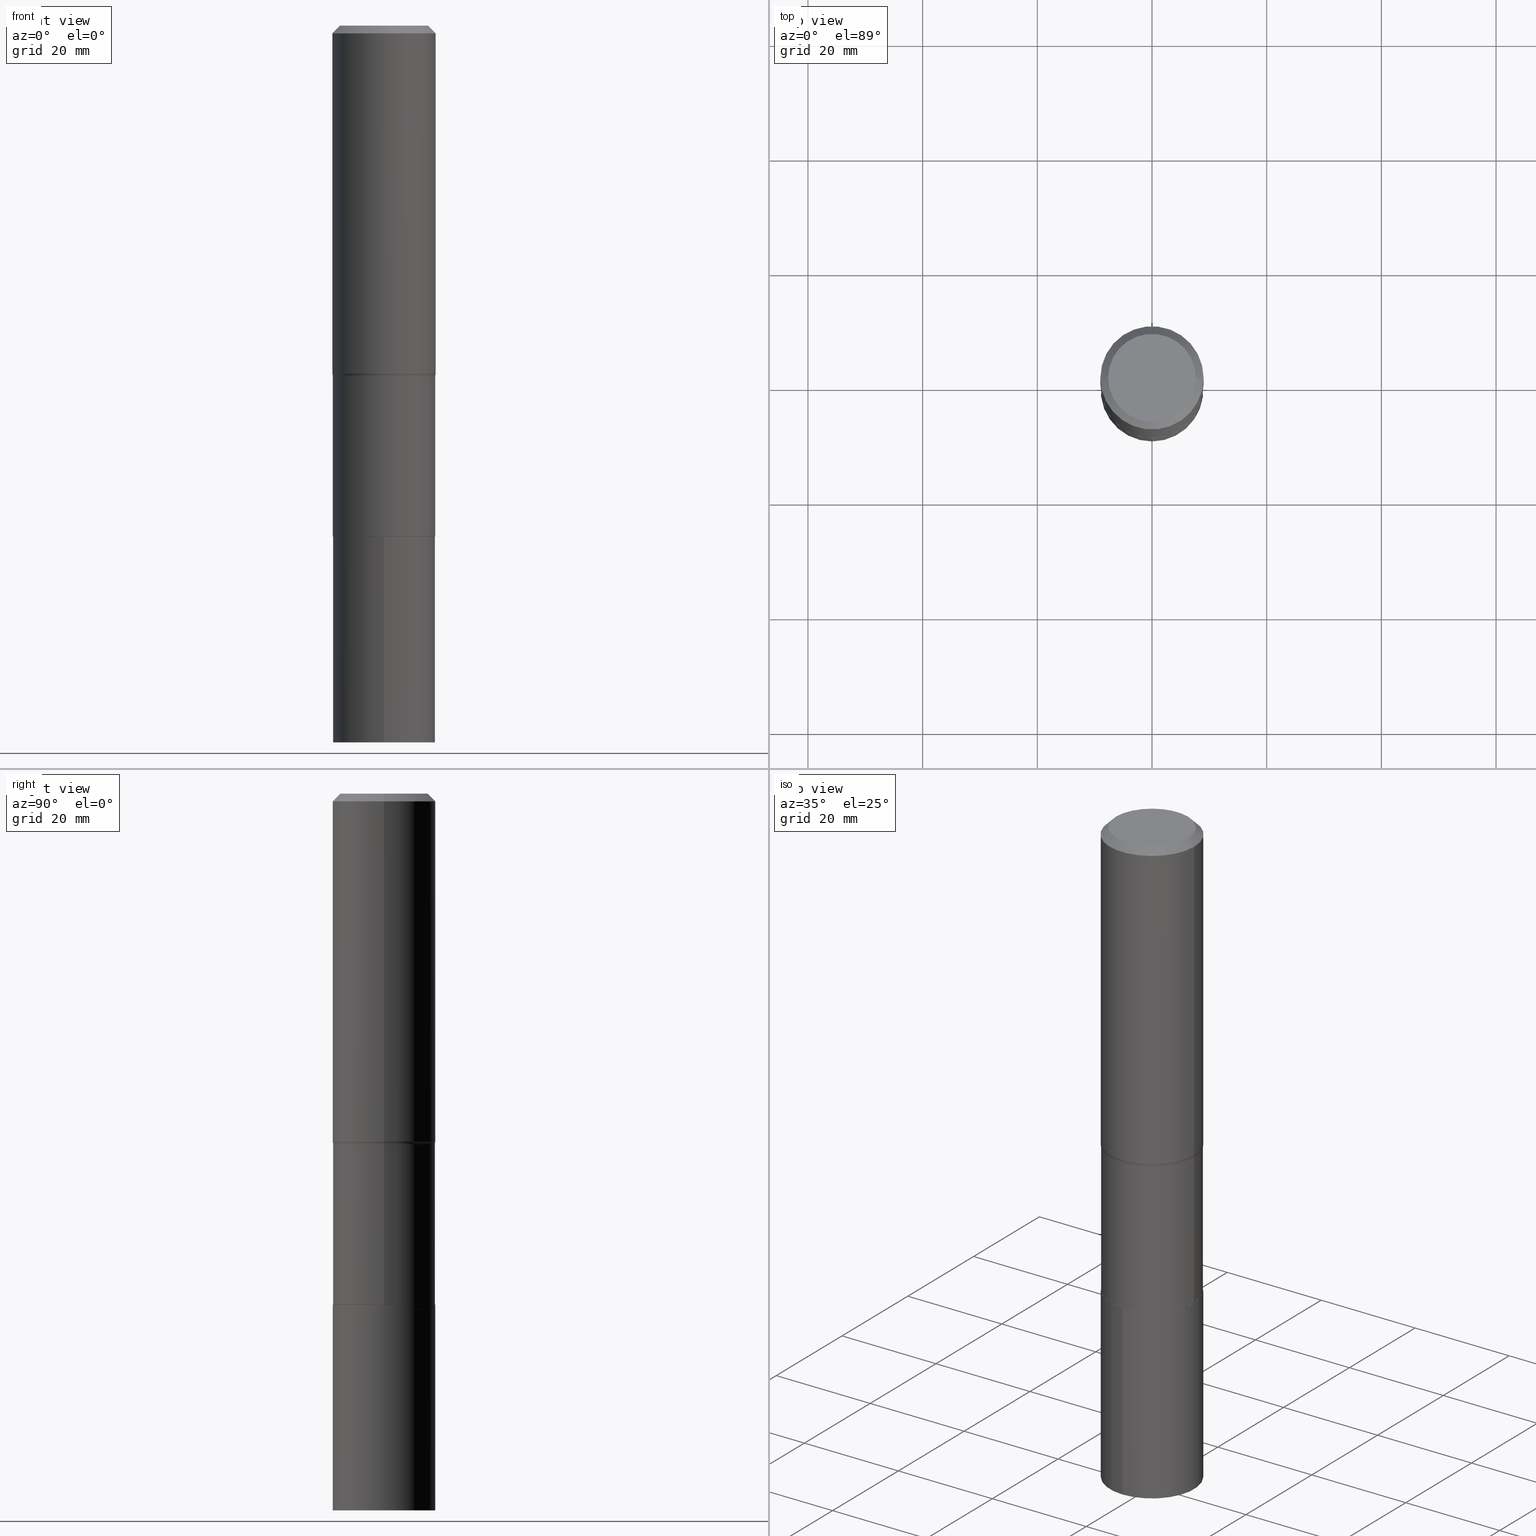
[diagram: canonical four-view strip — front | top / right | iso, engineering-drawing reading convention]
A machine part, canonical four-view strip (front | top / right | iso — engineering-drawing reading convention). The complete STEP part file that produces these views, byte-faithful:
ISO-10303-21;
HEADER;
FILE_DESCRIPTION (( 'STEP AP203' ),
    '1' );
FILE_NAME ('58546.STEP',
    '2024-04-19T14:42:25',
    ( '' ),
    ( '' ),
    'SwSTEP 2.0',
    'SolidWorks 2023',
    '' );
FILE_SCHEMA (( 'CONFIG_CONTROL_DESIGN' ));
ENDSEC;

DATA;
#1 = PERSON_AND_ORGANIZATION ( #364, #388 ) ;
#2 = ORIENTED_EDGE ( 'NONE', *, *, #446, .T. ) ;
#3 = FACE_OUTER_BOUND ( 'NONE', #212, .T. ) ;
#4 = DIMENSIONAL_EXPONENTS ( 1.000000000000000000, 0.000000000000000000, 0.000000000000000000, 0.000000000000000000, 0.000000000000000000, 0.000000000000000000, 0.000000000000000000 ) ;
#5 = EDGE_CURVE ( 'NONE', #31, #149, #405, .T. ) ;
#6 = AXIS2_PLACEMENT_3D ( 'NONE', #278, #455, #57 ) ;
#7 = CIRCLE ( 'NONE', #398, 0.07999999999999996003 ) ;
#8 =( LENGTH_UNIT ( ) NAMED_UNIT ( * ) SI_UNIT ( $, .METRE. ) );
#9 = PERSON_AND_ORGANIZATION ( #364, #388 ) ;
#10 = DIRECTION ( 'NONE',  ( -2.445468806185136877E-29, 3.491481338843145188E-15, 1.000000000000000000 ) ) ;
#11 = VECTOR ( 'NONE', #33, 39.37007874015748143 ) ;
#12 = CYLINDRICAL_SURFACE ( 'NONE', #435, 0.3515499999999999736 ) ;
#13 = CARTESIAN_POINT ( 'NONE',  ( 0.3515499999999998071, -1.086863225968481738E-14, -2.409800000000000164 ) ) ;
#14 = EDGE_CURVE ( 'NONE', #230, #419, #198, .T. ) ;
#15 = CARTESIAN_POINT ( 'NONE',  ( 0.000000000000000000, 0.000000000000000000, 0.000000000000000000 ) ) ;
#16 = AXIS2_PLACEMENT_3D ( 'NONE', #181, #429, #69 ) ;
#17 = AXIS2_PLACEMENT_3D ( 'NONE', #261, #208, #28 ) ;
#18 = AXIS2_PLACEMENT_3D ( 'NONE', #396, #317, #467 ) ;
#19 = DIRECTION ( 'NONE',  ( -6.982962677686265133E-15, -1.000000000000000000, 3.108346458443195584E-15 ) ) ;
#20 = CARTESIAN_POINT ( 'NONE',  ( -1.002970424325033577E-46, 1.431975951230896212E-32, 4.101342130344485961E-18 ) ) ;
#21 = CARTESIAN_POINT ( 'NONE',  ( 0.3543500000000002759, -1.081493330997731886E-14, -2.388820009532888644 ) ) ;
#22 = ADVANCED_FACE ( 'NONE', ( #433 ), #85, .F. ) ;
#23 = ORIENTED_EDGE ( 'NONE', *, *, #397, .T. ) ;
#24 = CARTESIAN_POINT ( 'NONE',  ( 0.3510500000000000287, -1.469704154772632696E-14, -3.507299999999999862 ) ) ;
#25 = VERTEX_POINT ( 'NONE', #369 ) ;
#26 = DIRECTION ( 'NONE',  ( -1.000000000000000000, 6.982962677686266711E-15, 0.000000000000000000 ) ) ;
#27 = ORIENTED_EDGE ( 'NONE', *, *, #146, .T. ) ;
#28 = DIRECTION ( 'NONE',  ( 1.000000000000000000, -6.982962677686265922E-15, 4.876176775795935793E-29 ) ) ;
#29 = EDGE_CURVE ( 'NONE', #25, #149, #35, .T. ) ;
#30 = ORIENTED_EDGE ( 'NONE', *, *, #29, .F. ) ;
#31 = VERTEX_POINT ( 'NONE', #439 ) ;
#32 = AXIS2_PLACEMENT_3D ( 'NONE', #145, #360, #263 ) ;
#33 = DIRECTION ( 'NONE',  ( 0.7071067811864026886, -2.468850131080739687E-15, 0.7071067811866923458 ) ) ;
#34 = ORIENTED_EDGE ( 'NONE', *, *, #134, .T. ) ;
#35 = LINE ( 'NONE', #294, #41 ) ;
#36 = CARTESIAN_POINT ( 'NONE',  ( -0.4315499999999998226, -5.347424554171501591E-15, -2.409800000000000164 ) ) ;
#37 = EDGE_LOOP ( 'NONE', ( #428, #349, #34, #209 ) ) ;
#38 = DIRECTION ( 'NONE',  ( -2.445468806185136597E-29, 3.491481338843145583E-15, 1.000000000000000000 ) ) ;
#39 = DIRECTION ( 'NONE',  ( -6.982962677686265133E-15, -1.000000000000000000, 3.108346458443195584E-15 ) ) ;
#40 =( NAMED_UNIT ( * ) SI_UNIT ( $, .STERADIAN. ) SOLID_ANGLE_UNIT ( ) );
#41 = VECTOR ( 'NONE', #290, 39.37007874015748143 ) ;
#42 = SECURITY_CLASSIFICATION ( '', '', #154 ) ;
#43 = DIRECTION ( 'NONE',  ( 0.000000000000000000, 0.000000000000000000, 1.000000000000000000 ) ) ;
#44 = PERSON_AND_ORGANIZATION_ROLE ( 'creator' ) ;
#45 = ADVANCED_FACE ( 'NONE', ( #46 ), #117, .T. ) ;
#46 = FACE_OUTER_BOUND ( 'NONE', #71, .T. ) ;
#47 = FACE_OUTER_BOUND ( 'NONE', #256, .T. ) ;
#48 = APPROVAL ( #243, 'UNSPECIFIED' ) ;
#49 = CIRCLE ( 'NONE', #264, 0.3543500000000002759 ) ;
#50 = DIRECTION ( 'NONE',  ( -2.445468806185136597E-29, 3.491481338843145583E-15, 1.000000000000000000 ) ) ;
#51 = ADVANCED_BREP_SHAPE_REPRESENTATION ( '58546', ( #224, #214, #80 ), #457 ) ;
#52 = EDGE_CURVE ( 'NONE', #250, #419, #72, .T. ) ;
#53 = DIRECTION ( 'NONE',  ( 1.000000000000000000, -6.982962677686266711E-15, 4.876239486148337140E-29 ) ) ;
#54 = CARTESIAN_POINT ( 'NONE',  ( 0.3543500000000001648, -2.474412824838129483E-15, 1.727873240503290590E-29 ) ) ;
#55 = CONICAL_SURFACE ( 'NONE', #95, 0.3510500000000000287, 0.7853981633972434429 ) ;
#56 = CARTESIAN_POINT ( 'NONE',  ( 8.576992743933130300E-29, -1.224567249972456408E-14, -3.507299999999999862 ) ) ;
#57 = DIRECTION ( 'NONE',  ( 1.000000000000000000, -6.982962677686265922E-15, 0.000000000000000000 ) ) ;
#58 = ADVANCED_FACE ( 'NONE', ( #357 ), #330, .F. ) ;
#59 = EDGE_LOOP ( 'NONE', ( #2, #254, #220, #343 ) ) ;
#60 = CARTESIAN_POINT ( 'NONE',  ( 1.299827807207562971E-30, -1.855809618628614763E-16, -0.05315250000000033143 ) ) ;
#61 = CIRCLE ( 'NONE', #125, 0.3515499999999999736 ) ;
#62 = APPLICATION_CONTEXT ( 'configuration controlled 3d designs of mechanical parts and assemblies' ) ;
#63 = AXIS2_PLACEMENT_3D ( 'NONE', #128, #202, #340 ) ;
#64 = DIRECTION ( 'NONE',  ( -2.445468806185136597E-29, 3.491481338843145583E-15, 1.000000000000000000 ) ) ;
#65 = ORIENTED_EDGE ( 'NONE', *, *, #96, .T. ) ;
#66 = ADVANCED_FACE ( 'NONE', ( #47 ), #461, .T. ) ;
#67 = PLANE ( 'NONE',  #17 ) ;
#68 = ORIENTED_EDGE ( 'NONE', *, *, #441, .F. ) ;
#69 = DIRECTION ( 'NONE',  ( -6.982962677686265133E-15, -1.000000000000000000, 3.108346458443195584E-15 ) ) ;
#70 = DIRECTION ( 'NONE',  ( -2.445468806185136597E-29, 3.491481338843145583E-15, 1.000000000000000000 ) ) ;
#71 = EDGE_LOOP ( 'NONE', ( #141, #316, #180, #211 ) ) ;
#72 = LINE ( 'NONE', #216, #155 ) ;
#73 = DIRECTION ( 'NONE',  ( 2.445468806185136597E-29, -3.491481338843145583E-15, -1.000000000000000000 ) ) ;
#74 = CONICAL_SURFACE ( 'NONE', #452, 0.3543499999999999983, 0.7853981633974452814 ) ;
#75 = CARTESIAN_POINT ( 'NONE',  ( 5.893090729144942257E-29, -8.413771730344211499E-15, -2.409800000000000164 ) ) ;
#76 = CALENDAR_DATE ( 2024, 19, 4 ) ;
#77 = DATE_AND_TIME ( #76, #437 ) ;
#78 = PERSON_AND_ORGANIZATION ( #364, #388 ) ;
#79 = CIRCLE ( 'NONE', #217, 0.3515499999999998071 ) ;
#80 = AXIS2_PLACEMENT_3D ( 'NONE', #434, #43, #227 ) ;
#81 = ADVANCED_FACE ( 'NONE', ( #301 ), #88, .F. ) ;
#82 = APPLICATION_PROTOCOL_DEFINITION ( 'international standard', 'config_control_design', 1994, #90 ) ;
#83 = CARTESIAN_POINT ( 'NONE',  ( 1.299827807207562971E-30, -1.855809618628614763E-16, -0.05315250000000033143 ) ) ;
#84 = PERSON_AND_ORGANIZATION_ROLE ( 'creator' ) ;
#85 = PLANE ( 'NONE',  #370 ) ;
#86 = PERSON_AND_ORGANIZATION ( #364, #388 ) ;
#87 = DIRECTION ( 'NONE',  ( -2.445468806185136597E-29, 3.491481338843145583E-15, 1.000000000000000000 ) ) ;
#88 = TOROIDAL_SURFACE ( 'NONE', #32, 0.4315499999999998226, 0.08000000000000000167 ) ;
#89 = CIRCLE ( 'NONE', #18, 0.3515499999999999736 ) ;
#90 = APPLICATION_CONTEXT ( 'configuration controlled 3d designs of mechanical parts and assemblies' ) ;
#91 = FACE_OUTER_BOUND ( 'NONE', #168, .T. ) ;
#92 = DIRECTION ( 'NONE',  ( -2.445924807738232456E-29, 3.490828318665115878E-15, 1.000000000000000000 ) ) ;
#93 = CARTESIAN_POINT ( 'NONE',  ( 8.575770009530037498E-29, -1.224392675905514179E-14, -3.506799999999999695 ) ) ;
#94 = VECTOR ( 'NONE', #456, 39.37007874015748143 ) ;
#95 = AXIS2_PLACEMENT_3D ( 'NONE', #386, #70, #431 ) ;
#96 = EDGE_CURVE ( 'NONE', #419, #230, #79, .T. ) ;
#97 = CARTESIAN_POINT ( 'NONE',  ( 0.3515499999999999736, -1.469878728839574925E-14, -3.506799999999999695 ) ) ;
#98 = ORIENTED_EDGE ( 'NONE', *, *, #52, .T. ) ;
#99 = DIRECTION ( 'NONE',  ( 1.000000000000000000, -6.982962677686265922E-15, 4.876176775795935793E-29 ) ) ;
#100 = CARTESIAN_POINT ( 'NONE',  ( 1.299827807207562971E-30, -1.855809618628614763E-16, -0.05315250000000033143 ) ) ;
#101 = ADVANCED_FACE ( 'NONE', ( #3 ), #12, .T. ) ;
#102 = EDGE_LOOP ( 'NONE', ( #215, #271, #65, #383 ) ) ;
#103 = CIRCLE ( 'NONE', #425, 0.3543499999999999983 ) ;
#104 = FACE_OUTER_BOUND ( 'NONE', #172, .T. ) ;
#105 = DIRECTION ( 'NONE',  ( -2.445468806185136597E-29, 3.491481338843145583E-15, 1.000000000000000000 ) ) ;
#106 = ORIENTED_EDGE ( 'NONE', *, *, #152, .T. ) ;
#107 = ORIENTED_EDGE ( 'NONE', *, *, #52, .F. ) ;
#108 = CYLINDRICAL_SURFACE ( 'NONE', #337, 0.3515499999999999181 ) ;
#109 = EDGE_LOOP ( 'NONE', ( #465, #447, #191, #391 ) ) ;
#110 = CARTESIAN_POINT ( 'NONE',  ( 1.352974009284250732E-29, -3.247973253878527260E-14, -4.921300000000000452 ) ) ;
#111 = APPROVAL_ROLE ( '' ) ;
#112 = CC_DESIGN_DATE_AND_TIME_ASSIGNMENT ( #327, #324, ( #115 ) ) ;
#113 = APPROVAL_PERSON_ORGANIZATION ( #9, #280, #368 ) ;
#114 = DATE_AND_TIME ( #189, #286 ) ;
#115 = PRODUCT_DEFINITION ( 'UNKNOWN', '', #371, #436 ) ;
#116 = LENGTH_MEASURE_WITH_UNIT ( LENGTH_MEASURE( 0.02539999999999999897 ), #8 );
#117 = CONICAL_SURFACE ( 'NONE', #376, 0.3543499999999999983, 0.7853981633974452814 ) ;
#118 = DIRECTION ( 'NONE',  ( 2.445468806185136597E-29, -3.491481338843145583E-15, -1.000000000000000000 ) ) ;
#119 = CIRCLE ( 'NONE', #443, 0.3543499999999999983 ) ;
#120 = VERTEX_POINT ( 'NONE', #412 ) ;
#121 = PERSON_AND_ORGANIZATION_ROLE ( 'design_owner' ) ;
#122 = ORIENTED_EDGE ( 'NONE', *, *, #196, .T. ) ;
#123 = ORIENTED_EDGE ( 'NONE', *, *, #363, .F. ) ;
#124 = CARTESIAN_POINT ( 'NONE',  ( 1.203553042207499101E-28, -1.718170374231704070E-14, -4.921300000000000452 ) ) ;
#125 = AXIS2_PLACEMENT_3D ( 'NONE', #93, #273, #129 ) ;
#126 = VECTOR ( 'NONE', #421, 39.37007874015748143 ) ;
#127 = CARTESIAN_POINT ( 'NONE',  ( 0.3515499999999999181, -2.454860529340606276E-15, 1.714219945531060835E-29 ) ) ;
#128 = CARTESIAN_POINT ( 'NONE',  ( 8.575770009530037498E-29, -1.224392675905514179E-14, -3.506799999999999695 ) ) ;
#129 = DIRECTION ( 'NONE',  ( 1.000000000000000000, -6.982962677686265922E-15, 0.000000000000000000 ) ) ;
#130 = AXIS2_PLACEMENT_3D ( 'NONE', #124, #92, #336 ) ;
#131 = VECTOR ( 'NONE', #140, 39.37007874015748143 ) ;
#132 = CARTESIAN_POINT ( 'NONE',  ( 8.576992743933130300E-29, -1.224567249972456408E-14, -3.507299999999999862 ) ) ;
#133 = CYLINDRICAL_SURFACE ( 'NONE', #296, 0.3515499999999999736 ) ;
#134 = EDGE_CURVE ( 'NONE', #120, #466, #161, .T. ) ;
#135 = ORIENTED_EDGE ( 'NONE', *, *, #363, .T. ) ;
#136 = DIRECTION ( 'NONE',  ( 1.000000000000000000, -6.982962677686265922E-15, 4.876176775795935793E-29 ) ) ;
#137 = VERTEX_POINT ( 'NONE', #97 ) ;
#138 = AXIS2_PLACEMENT_3D ( 'NONE', #75, #333, #367 ) ;
#139 = LOCAL_TIME ( 10, 42, 25.00000000000000000, #222 ) ;
#140 = DIRECTION ( 'NONE',  ( 0.7071067811865453523, -7.319954787623248157E-15, -0.7071067811865496822 ) ) ;
#141 = ORIENTED_EDGE ( 'NONE', *, *, #176, .F. ) ;
#142 = ORIENTED_EDGE ( 'NONE', *, *, #159, .F. ) ;
#143 = CARTESIAN_POINT ( 'NONE',  ( 5.841784816903559502E-29, -8.340520485139185830E-15, -2.388820009532888644 ) ) ;
#144 = VERTEX_POINT ( 'NONE', #414 ) ;
#145 = CARTESIAN_POINT ( 'NONE',  ( 5.893090729144942257E-29, -8.413771730344211499E-15, -2.409800000000000164 ) ) ;
#146 = EDGE_CURVE ( 'NONE', #287, #250, #375, .T. ) ;
#147 = PERSON_AND_ORGANIZATION ( #364, #388 ) ;
#148 = VERTEX_POINT ( 'NONE', #21 ) ;
#149 = VERTEX_POINT ( 'NONE', #373 ) ;
#150 = CARTESIAN_POINT ( 'NONE',  ( 8.576992743933130300E-29, -1.224567249972456408E-14, -3.507299999999999862 ) ) ;
#151 = AXIS2_PLACEMENT_3D ( 'NONE', #210, #462, #219 ) ;
#152 = EDGE_CURVE ( 'NONE', #399, #287, #354, .T. ) ;
#153 = PERSON_AND_ORGANIZATION_ROLE ( 'design_supplier' ) ;
#154 = SECURITY_CLASSIFICATION_LEVEL ( 'unclassified' ) ;
#155 = VECTOR ( 'NONE', #10, 39.37007874015748143 ) ;
#156 = DIRECTION ( 'NONE',  ( -1.000000000000000000, 6.982962677686266711E-15, 0.000000000000000000 ) ) ;
#157 = CIRCLE ( 'NONE', #300, 0.3515499999999999736 ) ;
#158 = CARTESIAN_POINT ( 'NONE',  ( 8.576992743933130300E-29, -1.224567249972456408E-14, -3.507299999999999862 ) ) ;
#159 = EDGE_CURVE ( 'NONE', #25, #392, #206, .T. ) ;
#160 = DATE_TIME_ROLE ( 'classification_date' ) ;
#161 = LINE ( 'NONE', #237, #345 ) ;
#162 = CARTESIAN_POINT ( 'NONE',  ( -0.3515499999999999736, -7.830936257135043446E-15, -3.506799999999999695 ) ) ;
#163 = DIRECTION ( 'NONE',  ( 2.445924807738231896E-29, -3.490828318665115878E-15, -1.000000000000000000 ) ) ;
#164 = DIRECTION ( 'NONE',  ( -2.445468806185136597E-29, 3.491481338843145583E-15, 1.000000000000000000 ) ) ;
#165 = CARTESIAN_POINT ( 'NONE',  ( -1.002970424325033577E-46, 1.431975951230896212E-32, 4.101342130344485961E-18 ) ) ;
#166 = CC_DESIGN_APPROVAL ( #409, ( #371 ) ) ;
#167 = LINE ( 'NONE', #351, #131 ) ;
#168 = EDGE_LOOP ( 'NONE', ( #122, #98, #321, #170 ) ) ;
#169 = CARTESIAN_POINT ( 'NONE',  ( 0.000000000000000000, 0.000000000000000000, 0.000000000000000000 ) ) ;
#170 = ORIENTED_EDGE ( 'NONE', *, *, #266, .F. ) ;
#171 = CARTESIAN_POINT ( 'NONE',  ( 2.497912987564734962E-15, 0.3515499999999827652, -4.921300000000002228 ) ) ;
#172 = EDGE_LOOP ( 'NONE', ( #400, #262, #188, #352 ) ) ;
#173 = DIRECTION ( 'NONE',  ( -6.982962677686265922E-15, -1.000000000000000000, 3.490828318665115878E-15 ) ) ;
#174 = VECTOR ( 'NONE', #381, 39.37007874015748143 ) ;
#175 = CARTESIAN_POINT ( 'NONE',  ( -0.3515499999999998071, -7.830936257135045023E-15, -2.409800000000000164 ) ) ;
#176 = EDGE_CURVE ( 'NONE', #144, #120, #310, .T. ) ;
#177 = ORIENTED_EDGE ( 'NONE', *, *, #464, .F. ) ;
#178 = CARTESIAN_POINT ( 'NONE',  ( 8.576992743933130300E-29, -1.224567249972456408E-14, -3.507299999999999862 ) ) ;
#179 = CYLINDRICAL_SURFACE ( 'NONE', #228, 0.3543500000000001648 ) ;
#180 = ORIENTED_EDGE ( 'NONE', *, *, #377, .T. ) ;
#181 = CARTESIAN_POINT ( 'NONE',  ( 8.576992743933130300E-29, -1.224567249972456408E-14, -3.507299999999999862 ) ) ;
#182 = UNCERTAINTY_MEASURE_WITH_UNIT (LENGTH_MEASURE( 1.000000000000000082E-05 ), #440, 'distance_accuracy_value', 'NONE');
#183 = EDGE_CURVE ( 'NONE', #325, #148, #236, .T. ) ;
#184 = AXIS2_PLACEMENT_3D ( 'NONE', #304, #87, #276 ) ;
#185 = COORDINATED_UNIVERSAL_TIME_OFFSET ( 5, 0, .BEHIND. ) ;
#186 = APPROVAL_PERSON_ORGANIZATION ( #404, #409, #111 ) ;
#187 = CARTESIAN_POINT ( 'NONE',  ( -0.3543499999999999983, -1.745242539335107473E-15, -0.05315250000000033143 ) ) ;
#188 = ORIENTED_EDGE ( 'NONE', *, *, #430, .T. ) ;
#189 = CALENDAR_DATE ( 2024, 19, 4 ) ;
#190 = AXIS2_PLACEMENT_3D ( 'NONE', #165, #410, #53 ) ;
#191 = ORIENTED_EDGE ( 'NONE', *, *, #232, .T. ) ;
#192 = CC_DESIGN_SECURITY_CLASSIFICATION ( #42, ( #371 ) ) ;
#193 = CC_DESIGN_PERSON_AND_ORGANIZATION_ASSIGNMENT ( #1, #84, ( #115 ) ) ;
#194 = DIRECTION ( 'NONE',  ( 1.000000000000000000, -6.982962677686265922E-15, 4.876176775795935793E-29 ) ) ;
#195 = DIRECTION ( 'NONE',  ( 1.000000000000000000, -6.982962677686266711E-15, 0.000000000000000000 ) ) ;
#196 = EDGE_CURVE ( 'NONE', #137, #250, #61, .T. ) ;
#197 = DIRECTION ( 'NONE',  ( -2.445468806185136877E-29, 3.491481338843145188E-15, 1.000000000000000000 ) ) ;
#198 = CIRCLE ( 'NONE', #138, 0.3515499999999998071 ) ;
#199 = APPROVAL_PERSON_ORGANIZATION ( #86, #48, #201 ) ;
#200 = PRODUCT_DEFINITION_SHAPE ( 'NONE', 'NONE',  #115 ) ;
#201 = APPROVAL_ROLE ( '' ) ;
#202 = DIRECTION ( 'NONE',  ( -2.445468806185136597E-29, 3.491481338843145583E-15, 1.000000000000000000 ) ) ;
#203 = PLANE ( 'NONE',  #463 ) ;
#204 = EDGE_LOOP ( 'NONE', ( #107, #251, #408, #292 ) ) ;
#205 = DIRECTION ( 'NONE',  ( 7.105427357601001859E-15, 1.000000000000000000, -3.491481338843145583E-15 ) ) ;
#206 = CIRCLE ( 'NONE', #130, 0.3515499999999999736 ) ;
#207 = ORIENTED_EDGE ( 'NONE', *, *, #5, .T. ) ;
#208 = DIRECTION ( 'NONE',  ( -2.438088387897960049E-29, 3.491481338843145188E-15, 1.000000000000000000 ) ) ;
#209 = ORIENTED_EDGE ( 'NONE', *, *, #257, .T. ) ;
#210 = CARTESIAN_POINT ( 'NONE',  ( 0.4315499999999998226, -1.142726927389972061E-14, -2.409800000000000164 ) ) ;
#211 = ORIENTED_EDGE ( 'NONE', *, *, #134, .F. ) ;
#212 = EDGE_LOOP ( 'NONE', ( #123, #448, #315, #318 ) ) ;
#213 = DIRECTION ( 'NONE',  ( 1.000000000000000000, -6.982962677686266711E-15, 0.000000000000000000 ) ) ;
#214 = MANIFOLD_SOLID_BREP ( 'Body-Move/Copy2[2]', #226 ) ;
#215 = ORIENTED_EDGE ( 'NONE', *, *, #183, .F. ) ;
#216 = CARTESIAN_POINT ( 'NONE',  ( -0.3515499999999999181, 2.497912987564631622E-15, -1.729251630979111735E-29 ) ) ;
#217 = AXIS2_PLACEMENT_3D ( 'NONE', #221, #38, #322 ) ;
#218 = CC_DESIGN_APPROVAL ( #280, ( #115 ) ) ;
#219 = DIRECTION ( 'NONE',  ( 1.000000000000000000, -6.982962677686262766E-15, 0.000000000000000000 ) ) ;
#220 = ORIENTED_EDGE ( 'NONE', *, *, #377, .F. ) ;
#221 = CARTESIAN_POINT ( 'NONE',  ( 5.893090729144942257E-29, -8.413771730344211499E-15, -2.409800000000000164 ) ) ;
#222 = COORDINATED_UNIVERSAL_TIME_OFFSET ( 5, 0, .BEHIND. ) ;
#223 = ADVANCED_FACE ( 'NONE', ( #335 ), #387, .F. ) ;
#224 = MANIFOLD_SOLID_BREP ( 'Body-Move/Copy2[1]', #423 ) ;
#225 = MECHANICAL_CONTEXT ( 'NONE', #62, 'mechanical' ) ;
#226 = CLOSED_SHELL ( 'NONE', ( #66, #45, #313, #81, #242, #359, #223, #329, #347, #22, #385, #334 ) ) ;
#227 = DIRECTION ( 'NONE',  ( 1.000000000000000000, 0.000000000000000000, 0.000000000000000000 ) ) ;
#228 = AXIS2_PLACEMENT_3D ( 'NONE', #284, #64, #136 ) ;
#229 = APPROVAL_STATUS ( 'not_yet_approved' ) ;
#230 = VERTEX_POINT ( 'NONE', #13 ) ;
#231 = CALENDAR_DATE ( 2024, 19, 4 ) ;
#232 = EDGE_CURVE ( 'NONE', #148, #389, #244, .T. ) ;
#233 = ORIENTED_EDGE ( 'NONE', *, *, #446, .F. ) ;
#234 = DIRECTION ( 'NONE',  ( 2.438088387897960049E-29, -3.491481338843145188E-15, -1.000000000000000000 ) ) ;
#235 = COORDINATED_UNIVERSAL_TIME_OFFSET ( 5, 0, .BEHIND. ) ;
#236 = CIRCLE ( 'NONE', #6, 0.3543500000000002759 ) ;
#237 = CARTESIAN_POINT ( 'NONE',  ( -0.3543499999999999983, 2.288831862975267218E-15, -0.05315250000000033143 ) ) ;
#238 = LOCAL_TIME ( 10, 42, 25.00000000000000000, #235 ) ;
#239 = ORIENTED_EDGE ( 'NONE', *, *, #403, .F. ) ;
#240 = CALENDAR_DATE ( 2024, 19, 4 ) ;
#241 = CYLINDRICAL_SURFACE ( 'NONE', #378, 0.3515499999999999181 ) ;
#242 = ADVANCED_FACE ( 'NONE', ( #91 ), #241, .T. ) ;
#243 = APPROVAL_STATUS ( 'not_yet_approved' ) ;
#244 = LINE ( 'NONE', #54, #451 ) ;
#245 = SHAPE_DEFINITION_REPRESENTATION ( #200, #51 ) ;
#246 = CARTESIAN_POINT ( 'NONE',  ( -0.3510500000000000287, -9.751312225838731782E-15, -3.507299999999999862 ) ) ;
#247 = AXIS2_PLACEMENT_3D ( 'NONE', #110, #270, #173 ) ;
#248 = AXIS2_PLACEMENT_3D ( 'NONE', #288, #424, #99 ) ;
#249 = CARTESIAN_POINT ( 'NONE',  ( 8.576992743933130300E-29, -1.224567249972456408E-14, -3.507299999999999862 ) ) ;
#250 = VERTEX_POINT ( 'NONE', #162 ) ;
#251 = ORIENTED_EDGE ( 'NONE', *, *, #285, .T. ) ;
#252 = CYLINDRICAL_SURFACE ( 'NONE', #248, 0.3543500000000001648 ) ;
#253 = FACE_OUTER_BOUND ( 'NONE', #259, .T. ) ;
#254 = ORIENTED_EDGE ( 'NONE', *, *, #303, .T. ) ;
#255 = CARTESIAN_POINT ( 'NONE',  ( 8.576992743933130300E-29, -1.224567249972456408E-14, -3.507299999999999862 ) ) ;
#256 = EDGE_LOOP ( 'NONE', ( #106, #27, #445, #382 ) ) ;
#257 = EDGE_CURVE ( 'NONE', #466, #389, #119, .T. ) ;
#258 = FACE_OUTER_BOUND ( 'NONE', #204, .T. ) ;
#259 = EDGE_LOOP ( 'NONE', ( #460, #135, #177, #30 ) ) ;
#260 = DIRECTION ( 'NONE',  ( -1.000000000000000000, 6.982962677686265922E-15, -4.876176775795935793E-29 ) ) ;
#261 = CARTESIAN_POINT ( 'NONE',  ( 8.576992743933130300E-29, -1.224567249972456408E-14, -3.507299999999999862 ) ) ;
#262 = ORIENTED_EDGE ( 'NONE', *, *, #403, .T. ) ;
#263 = DIRECTION ( 'NONE',  ( 1.000000000000000000, -6.982962677686267499E-15, 4.883557194083113462E-29 ) ) ;
#264 = AXIS2_PLACEMENT_3D ( 'NONE', #143, #291, #281 ) ;
#265 = PERSON_AND_ORGANIZATION_ROLE ( 'classification_officer' ) ;
#266 = EDGE_CURVE ( 'NONE', #137, #230, #453, .T. ) ;
#267 = APPROVAL_DATE_TIME ( #366, #409 ) ;
#268 = CALENDAR_DATE ( 2024, 19, 4 ) ;
#269 = CIRCLE ( 'NONE', #63, 0.3515499999999999736 ) ;
#270 = DIRECTION ( 'NONE',  ( -2.445924807738231896E-29, 3.490828318665115878E-15, 1.000000000000000000 ) ) ;
#271 = ORIENTED_EDGE ( 'NONE', *, *, #323, .T. ) ;
#272 = ORIENTED_EDGE ( 'NONE', *, *, #299, .T. ) ;
#273 = DIRECTION ( 'NONE',  ( -2.445468806185136597E-29, 3.491481338843145583E-15, 1.000000000000000000 ) ) ;
#274 = DIRECTION ( 'NONE',  ( -2.445468806185136877E-29, 3.491481338843145188E-15, 1.000000000000000000 ) ) ;
#275 = ADVANCED_FACE ( 'NONE', ( #338 ), #203, .F. ) ;
#276 = DIRECTION ( 'NONE',  ( 1.000000000000000000, -6.982962677686267499E-15, 4.883557194083113462E-29 ) ) ;
#277 = CC_DESIGN_PERSON_AND_ORGANIZATION_ASSIGNMENT ( #147, #265, ( #42 ) ) ;
#278 = CARTESIAN_POINT ( 'NONE',  ( 5.841784816903559502E-29, -8.340520485139185830E-15, -2.388820009532888644 ) ) ;
#279 = DIRECTION ( 'NONE',  ( 1.000000000000000000, -6.982962677686266711E-15, 0.000000000000000000 ) ) ;
#280 = APPROVAL ( #229, 'UNSPECIFIED' ) ;
#281 = DIRECTION ( 'NONE',  ( 1.000000000000000000, -6.982962677686265922E-15, 0.000000000000000000 ) ) ;
#282 = DIRECTION ( 'NONE',  ( 1.000000000000000000, -6.982962677686265922E-15, 4.876176775795935793E-29 ) ) ;
#283 = EDGE_LOOP ( 'NONE', ( #272, #438 ) ) ;
#284 = CARTESIAN_POINT ( 'NONE',  ( 0.000000000000000000, 0.000000000000000000, 0.000000000000000000 ) ) ;
#285 = EDGE_CURVE ( 'NONE', #250, #137, #269, .T. ) ;
#286 = LOCAL_TIME ( 10, 42, 25.00000000000000000, #185 ) ;
#287 = VERTEX_POINT ( 'NONE', #417 ) ;
#288 = CARTESIAN_POINT ( 'NONE',  ( 0.000000000000000000, 0.000000000000000000, 0.000000000000000000 ) ) ;
#289 = EDGE_LOOP ( 'NONE', ( #142, #68 ) ) ;
#290 = DIRECTION ( 'NONE',  ( -2.445924807738232456E-29, 3.490828318665115878E-15, 1.000000000000000000 ) ) ;
#291 = DIRECTION ( 'NONE',  ( -2.445468806185136597E-29, 3.491481338843145583E-15, 1.000000000000000000 ) ) ;
#292 = ORIENTED_EDGE ( 'NONE', *, *, #96, .F. ) ;
#293 = CARTESIAN_POINT ( 'NONE',  ( -5.014852121625167883E-47, 7.159879756154481060E-33, 2.050671065172242981E-18 ) ) ;
#294 = CARTESIAN_POINT ( 'NONE',  ( -2.454860529340520291E-15, -0.3515500000000121861, -3.507299999999998974 ) ) ;
#295 = AXIS2_PLACEMENT_3D ( 'NONE', #178, #319, #407 ) ;
#296 = AXIS2_PLACEMENT_3D ( 'NONE', #255, #384, #311 ) ;
#297 = COORDINATED_UNIVERSAL_TIME_OFFSET ( 5, 0, .BEHIND. ) ;
#298 = APPLICATION_PROTOCOL_DEFINITION ( 'international standard', 'config_control_design', 1994, #62 ) ;
#299 = EDGE_CURVE ( 'NONE', #120, #144, #306, .T. ) ;
#300 = AXIS2_PLACEMENT_3D ( 'NONE', #150, #402, #39 ) ;
#301 = FACE_OUTER_BOUND ( 'NONE', #102, .T. ) ;
#302 = DIRECTION ( 'NONE',  ( -2.445924807738232456E-29, 3.490828318665115878E-15, 1.000000000000000000 ) ) ;
#303 = EDGE_CURVE ( 'NONE', #325, #466, #418, .T. ) ;
#304 = CARTESIAN_POINT ( 'NONE',  ( 5.893090729144942257E-29, -8.413771730344211499E-15, -2.409800000000000164 ) ) ;
#305 = DIRECTION ( 'NONE',  ( -2.445468806185136597E-29, 3.491481338843145583E-15, 1.000000000000000000 ) ) ;
#306 = CIRCLE ( 'NONE', #362, 0.3011975000000000069 ) ;
#307 = DIRECTION ( 'NONE',  ( 6.982962677686265922E-15, 1.000000000000000000, -3.490828318665115878E-15 ) ) ;
#308 = DIRECTION ( 'NONE',  ( 1.000000000000000000, -6.982962677686266711E-15, 4.876239486148337140E-29 ) ) ;
#309 = FACE_OUTER_BOUND ( 'NONE', #59, .T. ) ;
#310 = CIRCLE ( 'NONE', #190, 0.3011975000000000069 ) ;
#311 = DIRECTION ( 'NONE',  ( -6.982962677686265133E-15, -1.000000000000000000, 3.108346458443195584E-15 ) ) ;
#312 = DIRECTION ( 'NONE',  ( -2.445468806185136597E-29, 3.491481338843145583E-15, 1.000000000000000000 ) ) ;
#313 = ADVANCED_FACE ( 'NONE', ( #309 ), #252, .T. ) ;
#314 = DIRECTION ( 'NONE',  ( -1.000000000000000000, 7.105427357601001859E-15, 0.000000000000000000 ) ) ;
#315 = ORIENTED_EDGE ( 'NONE', *, *, #29, .T. ) ;
#316 = ORIENTED_EDGE ( 'NONE', *, *, #415, .T. ) ;
#317 = DIRECTION ( 'NONE',  ( -2.445924807738232456E-29, 3.490828318665115878E-15, 1.000000000000000000 ) ) ;
#318 = ORIENTED_EDGE ( 'NONE', *, *, #5, .F. ) ;
#319 = DIRECTION ( 'NONE',  ( -2.445468806185136597E-29, 3.491481338843145583E-15, 1.000000000000000000 ) ) ;
#320 = FACE_OUTER_BOUND ( 'NONE', #37, .T. ) ;
#321 = ORIENTED_EDGE ( 'NONE', *, *, #14, .F. ) ;
#322 = DIRECTION ( 'NONE',  ( 1.000000000000000000, -6.982962677686265133E-15, 0.000000000000000000 ) ) ;
#323 = EDGE_CURVE ( 'NONE', #325, #419, #7, .T. ) ;
#324 = DATE_TIME_ROLE ( 'creation_date' ) ;
#325 = VERTEX_POINT ( 'NONE', #348 ) ;
#326 = VECTOR ( 'NONE', #197, 39.37007874015748143 ) ;
#327 = DATE_AND_TIME ( #268, #139 ) ;
#328 = PERSON_AND_ORGANIZATION ( #364, #388 ) ;
#329 = ADVANCED_FACE ( 'NONE', ( #458 ), #179, .T. ) ;
#330 = PLANE ( 'NONE',  #247 ) ;
#331 = AXIS2_PLACEMENT_3D ( 'NONE', #249, #450, #195 ) ;
#332 = CIRCLE ( 'NONE', #411, 0.3510500000000000287 ) ;
#333 = DIRECTION ( 'NONE',  ( -2.445468806185136597E-29, 3.491481338843145583E-15, 1.000000000000000000 ) ) ;
#334 = ADVANCED_FACE ( 'NONE', ( #104 ), #55, .T. ) ;
#335 = FACE_OUTER_BOUND ( 'NONE', #395, .T. ) ;
#336 = DIRECTION ( 'NONE',  ( -6.982962677686265133E-15, -1.000000000000000000, 3.108346458443195584E-15 ) ) ;
#337 = AXIS2_PLACEMENT_3D ( 'NONE', #169, #105, #282 ) ;
#338 = FACE_OUTER_BOUND ( 'NONE', #356, .T. ) ;
#339 = PRODUCT ( '58546', '58546', '', ( #225 ) ) ;
#340 = DIRECTION ( 'NONE',  ( 1.000000000000000000, -6.982962677686265922E-15, 0.000000000000000000 ) ) ;
#341 = ADVANCED_FACE ( 'NONE', ( #253 ), #133, .T. ) ;
#342 = CARTESIAN_POINT ( 'NONE',  ( -0.3543500000000001648, 2.517808184165916180E-15, -1.743024649231826627E-29 ) ) ;
#343 = ORIENTED_EDGE ( 'NONE', *, *, #232, .F. ) ;
#344 = CARTESIAN_POINT ( 'NONE',  ( 0.3543499999999999983, -2.659993786700990170E-15, -0.05315250000000033143 ) ) ;
#345 = VECTOR ( 'NONE', #374, 39.37007874015748143 ) ;
#346 = CC_DESIGN_APPROVAL ( #48, ( #42 ) ) ;
#347 = ADVANCED_FACE ( 'NONE', ( #320 ), #74, .T. ) ;
#348 = CARTESIAN_POINT ( 'NONE',  ( -0.3543500000000002759, -5.822712300973268862E-15, -2.388820009532888644 ) ) ;
#349 = ORIENTED_EDGE ( 'NONE', *, *, #299, .F. ) ;
#350 = CC_DESIGN_DATE_AND_TIME_ASSIGNMENT ( #77, #160, ( #42 ) ) ;
#351 = CARTESIAN_POINT ( 'NONE',  ( 0.3543499999999999983, -2.616598427373203868E-15, -0.05315250000000033143 ) ) ;
#352 = ORIENTED_EDGE ( 'NONE', *, *, #285, .F. ) ;
#353 = LINE ( 'NONE', #427, #11 ) ;
#354 = CIRCLE ( 'NONE', #331, 0.3510500000000000287 ) ;
#355 = CIRCLE ( 'NONE', #151, 0.07999999999999996003 ) ;
#356 = EDGE_LOOP ( 'NONE', ( #426, #207 ) ) ;
#357 = FACE_OUTER_BOUND ( 'NONE', #289, .T. ) ;
#358 = CARTESIAN_POINT ( 'NONE',  ( 2.497912987564717213E-15, 0.3515499999999877612, -3.507300000000001194 ) ) ;
#359 = ADVANCED_FACE ( 'NONE', ( #258 ), #108, .T. ) ;
#360 = DIRECTION ( 'NONE',  ( -2.445468806185136597E-29, 3.491481338843145583E-15, 1.000000000000000000 ) ) ;
#361 = APPROVAL_DATE_TIME ( #114, #280 ) ;
#362 = AXIS2_PLACEMENT_3D ( 'NONE', #20, #164, #308 ) ;
#363 = EDGE_CURVE ( 'NONE', #392, #31, #393, .T. ) ;
#364 = PERSON ( 'UNSPECIFIED', 'UNSPECIFIED', 'UNSPECIFIED', ('UNSPECIFIED'), ('UNSPECIFIED'), ('UNSPECIFIED') ) ;
#365 =( NAMED_UNIT ( * ) PLANE_ANGLE_UNIT ( ) SI_UNIT ( $, .RADIAN. ) );
#366 = DATE_AND_TIME ( #231, #406 ) ;
#367 = DIRECTION ( 'NONE',  ( 1.000000000000000000, -6.982962677686265133E-15, 0.000000000000000000 ) ) ;
#368 = APPROVAL_ROLE ( '' ) ;
#369 = CARTESIAN_POINT ( 'NONE',  ( -2.454860529340485975E-15, -0.3515500000000171821, -4.921299999999999564 ) ) ;
#370 = AXIS2_PLACEMENT_3D ( 'NONE', #293, #234, #260 ) ;
#371 = PRODUCT_DEFINITION_FORMATION_WITH_SPECIFIED_SOURCE ( 'ANY', '', #339, .NOT_KNOWN. ) ;
#372 = DATE_AND_TIME ( #240, #238 ) ;
#373 = CARTESIAN_POINT ( 'NONE',  ( -2.454860529340520291E-15, -0.3515500000000121861, -3.507299999999998974 ) ) ;
#374 = DIRECTION ( 'NONE',  ( -0.7071067811865453523, 2.468850131082234184E-15, -0.7071067811865496822 ) ) ;
#375 = LINE ( 'NONE', #246, #94 ) ;
#376 = AXIS2_PLACEMENT_3D ( 'NONE', #83, #118, #156 ) ;
#377 = EDGE_CURVE ( 'NONE', #389, #466, #103, .T. ) ;
#378 = AXIS2_PLACEMENT_3D ( 'NONE', #15, #50, #194 ) ;
#379 = CARTESIAN_POINT ( 'NONE',  ( 1.299827807207562971E-30, -1.855809618628614763E-16, -0.05315250000000033143 ) ) ;
#380 = PRODUCT_RELATED_PRODUCT_CATEGORY ( 'detail', '', ( #339 ) ) ;
#381 = DIRECTION ( 'NONE',  ( -2.445468806185136877E-29, 3.491481338843145188E-15, 1.000000000000000000 ) ) ;
#382 = ORIENTED_EDGE ( 'NONE', *, *, #430, .F. ) ;
#383 = ORIENTED_EDGE ( 'NONE', *, *, #397, .F. ) ;
#384 = DIRECTION ( 'NONE',  ( -2.445924807738232456E-29, 3.490828318665115878E-15, 1.000000000000000000 ) ) ;
#385 = ADVANCED_FACE ( 'NONE', ( #390 ), #67, .F. ) ;
#386 = CARTESIAN_POINT ( 'NONE',  ( 8.576992743933130300E-29, -1.224567249972456408E-14, -3.507299999999999862 ) ) ;
#387 = TOROIDAL_SURFACE ( 'NONE', #184, 0.4315499999999998226, 0.08000000000000000167 ) ;
#388 = ORGANIZATION ( 'UNSPECIFIED', 'UNSPECIFIED', '' ) ;
#389 = VERTEX_POINT ( 'NONE', #344 ) ;
#390 = FACE_OUTER_BOUND ( 'NONE', #468, .T. ) ;
#391 = ORIENTED_EDGE ( 'NONE', *, *, #257, .F. ) ;
#392 = VERTEX_POINT ( 'NONE', #171 ) ;
#393 = LINE ( 'NONE', #358, #126 ) ;
#394 = ORIENTED_EDGE ( 'NONE', *, *, #323, .F. ) ;
#395 = EDGE_LOOP ( 'NONE', ( #394, #233, #23, #432 ) ) ;
#396 = CARTESIAN_POINT ( 'NONE',  ( 1.203553042207499101E-28, -1.718170374231704070E-14, -4.921300000000000452 ) ) ;
#397 = EDGE_CURVE ( 'NONE', #148, #230, #355, .T. ) ;
#398 = AXIS2_PLACEMENT_3D ( 'NONE', #36, #205, #314 ) ;
#399 = VERTEX_POINT ( 'NONE', #24 ) ;
#400 = ORIENTED_EDGE ( 'NONE', *, *, #146, .F. ) ;
#401 = COORDINATED_UNIVERSAL_TIME_OFFSET ( 5, 0, .BEHIND. ) ;
#402 = DIRECTION ( 'NONE',  ( -2.445924807738232456E-29, 3.490828318665115878E-15, 1.000000000000000000 ) ) ;
#403 = EDGE_CURVE ( 'NONE', #287, #399, #332, .T. ) ;
#404 = PERSON_AND_ORGANIZATION ( #364, #388 ) ;
#405 = CIRCLE ( 'NONE', #16, 0.3515499999999999736 ) ;
#406 = LOCAL_TIME ( 10, 42, 25.00000000000000000, #297 ) ;
#407 = DIRECTION ( 'NONE',  ( 1.000000000000000000, -6.982962677686266711E-15, 0.000000000000000000 ) ) ;
#408 = ORIENTED_EDGE ( 'NONE', *, *, #266, .T. ) ;
#409 = APPROVAL ( #442, 'UNSPECIFIED' ) ;
#410 = DIRECTION ( 'NONE',  ( -2.445468806185136597E-29, 3.491481338843145583E-15, 1.000000000000000000 ) ) ;
#411 = AXIS2_PLACEMENT_3D ( 'NONE', #132, #420, #213 ) ;
#412 = CARTESIAN_POINT ( 'NONE',  ( -0.3011975000000000069, 2.196041382043838255E-15, 4.101342130329452923E-18 ) ) ;
#413 = CC_DESIGN_PERSON_AND_ORGANIZATION_ASSIGNMENT ( #78, #44, ( #371 ) ) ;
#414 = CARTESIAN_POINT ( 'NONE',  ( 0.3011975000000000069, -2.341481636528497322E-15, 4.101342130360026675E-18 ) ) ;
#415 = EDGE_CURVE ( 'NONE', #144, #389, #167, .T. ) ;
#416 = APPROVAL_DATE_TIME ( #372, #48 ) ;
#417 = CARTESIAN_POINT ( 'NONE',  ( -0.3510500000000000287, -9.748662998664619792E-15, -3.507299999999999862 ) ) ;
#418 = LINE ( 'NONE', #342, #174 ) ;
#419 = VERTEX_POINT ( 'NONE', #175 ) ;
#420 = DIRECTION ( 'NONE',  ( -2.445468806185136597E-29, 3.491481338843145583E-15, 1.000000000000000000 ) ) ;
#421 = DIRECTION ( 'NONE',  ( -2.445924807738232456E-29, 3.490828318665115878E-15, 1.000000000000000000 ) ) ;
#422 = ORIENTED_EDGE ( 'NONE', *, *, #152, .F. ) ;
#423 = CLOSED_SHELL ( 'NONE', ( #341, #58, #101, #275 ) ) ;
#424 = DIRECTION ( 'NONE',  ( -2.445468806185136597E-29, 3.491481338843145583E-15, 1.000000000000000000 ) ) ;
#425 = AXIS2_PLACEMENT_3D ( 'NONE', #100, #312, #459 ) ;
#426 = ORIENTED_EDGE ( 'NONE', *, *, #464, .T. ) ;
#427 = CARTESIAN_POINT ( 'NONE',  ( 0.3510500000000000287, -1.469704154772632696E-14, -3.507299999999999862 ) ) ;
#428 = ORIENTED_EDGE ( 'NONE', *, *, #415, .F. ) ;
#429 = DIRECTION ( 'NONE',  ( -2.445924807738232456E-29, 3.490828318665115878E-15, 1.000000000000000000 ) ) ;
#430 = EDGE_CURVE ( 'NONE', #399, #137, #353, .T. ) ;
#431 = DIRECTION ( 'NONE',  ( 1.000000000000000000, -6.982962677686266711E-15, 0.000000000000000000 ) ) ;
#432 = ORIENTED_EDGE ( 'NONE', *, *, #14, .T. ) ;
#433 = FACE_OUTER_BOUND ( 'NONE', #283, .T. ) ;
#434 = CARTESIAN_POINT ( 'NONE',  ( 0.000000000000000000, 0.000000000000000000, 0.000000000000000000 ) ) ;
#435 = AXIS2_PLACEMENT_3D ( 'NONE', #158, #302, #19 ) ;
#436 = DESIGN_CONTEXT ( 'detailed design', #90, 'design' ) ;
#437 = LOCAL_TIME ( 10, 42, 25.00000000000000000, #401 ) ;
#438 = ORIENTED_EDGE ( 'NONE', *, *, #176, .T. ) ;
#439 = CARTESIAN_POINT ( 'NONE',  ( 2.497912987564752712E-15, 0.3515499999999877612, -3.507300000000001194 ) ) ;
#440 =( CONVERSION_BASED_UNIT ( 'INCH', #116 ) LENGTH_UNIT ( ) NAMED_UNIT ( #4 ) );
#441 = EDGE_CURVE ( 'NONE', #392, #25, #89, .T. ) ;
#442 = APPROVAL_STATUS ( 'not_yet_approved' ) ;
#443 = AXIS2_PLACEMENT_3D ( 'NONE', #379, #305, #279 ) ;
#444 = PERSON_AND_ORGANIZATION ( #364, #388 ) ;
#445 = ORIENTED_EDGE ( 'NONE', *, *, #196, .F. ) ;
#446 = EDGE_CURVE ( 'NONE', #148, #325, #49, .T. ) ;
#447 = ORIENTED_EDGE ( 'NONE', *, *, #183, .T. ) ;
#448 = ORIENTED_EDGE ( 'NONE', *, *, #441, .T. ) ;
#449 = CC_DESIGN_PERSON_AND_ORGANIZATION_ASSIGNMENT ( #328, #153, ( #371 ) ) ;
#450 = DIRECTION ( 'NONE',  ( -2.445468806185136597E-29, 3.491481338843145583E-15, 1.000000000000000000 ) ) ;
#451 = VECTOR ( 'NONE', #274, 39.37007874015748143 ) ;
#452 = AXIS2_PLACEMENT_3D ( 'NONE', #60, #73, #26 ) ;
#453 = LINE ( 'NONE', #127, #326 ) ;
#454 = CC_DESIGN_PERSON_AND_ORGANIZATION_ASSIGNMENT ( #444, #121, ( #339 ) ) ;
#455 = DIRECTION ( 'NONE',  ( -2.445468806185136597E-29, 3.491481338843145583E-15, 1.000000000000000000 ) ) ;
#456 = DIRECTION ( 'NONE',  ( -0.7071067811864026886, 7.493145998869830357E-15, 0.7071067811866923458 ) ) ;
#457 =( GEOMETRIC_REPRESENTATION_CONTEXT ( 3 ) GLOBAL_UNCERTAINTY_ASSIGNED_CONTEXT ( ( #182 ) ) GLOBAL_UNIT_ASSIGNED_CONTEXT ( ( #440, #365, #40 ) ) REPRESENTATION_CONTEXT ( 'NONE', 'WORKASPACE' ) );
#458 = FACE_OUTER_BOUND ( 'NONE', #109, .T. ) ;
#459 = DIRECTION ( 'NONE',  ( 1.000000000000000000, -6.982962677686266711E-15, 0.000000000000000000 ) ) ;
#460 = ORIENTED_EDGE ( 'NONE', *, *, #159, .T. ) ;
#461 = CONICAL_SURFACE ( 'NONE', #295, 0.3510500000000000287, 0.7853981633972434429 ) ;
#462 = DIRECTION ( 'NONE',  ( -6.982962677686266711E-15, -1.000000000000000000, 3.491481338843145583E-15 ) ) ;
#463 = AXIS2_PLACEMENT_3D ( 'NONE', #56, #163, #307 ) ;
#464 = EDGE_CURVE ( 'NONE', #149, #31, #157, .T. ) ;
#465 = ORIENTED_EDGE ( 'NONE', *, *, #303, .F. ) ;
#466 = VERTEX_POINT ( 'NONE', #187 ) ;
#467 = DIRECTION ( 'NONE',  ( -6.982962677686265133E-15, -1.000000000000000000, 3.108346458443195584E-15 ) ) ;
#468 = EDGE_LOOP ( 'NONE', ( #422, #239 ) ) ;
ENDSEC;
END-ISO-10303-21;
